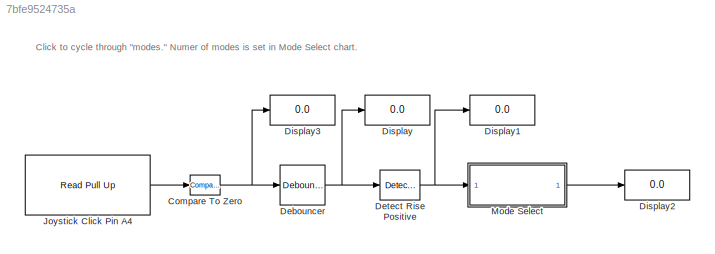
MODEL slx_7bfe9524735a
KIND model
CONFIG AbsTol = auto
CONFIG EnableMultiTasking = off
CONFIG FixedStep = .01
CONFIG MaxStep = auto
CONFIG MinStep = auto
CONFIG RelTol = 1e-3
CONFIG SampleTimeConstraint = Unconstrained
CONFIG Solver = FixedStepDiscrete
CONFIG SolverName = FixedStepDiscrete
CONFIG StartTime = 0.0
CONFIG StopTime = inf
BLOCK [Reference] Compare To Zero  REF=simulink/Logic and Bit
Operations/Compare
To Zero
  Ports = [1, 1]
  SourceBlock = simulink/Logic and Bit\nOperations/Compare\nTo Zero
  SourceProductBaseCode = SL
  SourceProductName = Simulink
  SourceType = Compare To Zero
BLOCK [Reference] Debouncer  REF=CustomLibrary/Debouncer
  Ports = [1, 1]
  SourceBlock = CustomLibrary/Debouncer
  SourceProductName = Custom Blocks
  SourceType = SubSystem
BLOCK [Reference] Detect Rise Positive  REF=simulink/Logic and Bit
Operations/Detect Rise
Positive
  Ports = [1, 1]
  SourceBlock = simulink/Logic and Bit\nOperations/Detect Rise\nPositive
  SourceProductBaseCode = SL
  SourceProductName = Simulink
  SourceType = Detect Rise Positive
BLOCK [Display] Display
  Decimation = 1
  Ports = [1]
BLOCK [Display] Display1
  Decimation = 1
  Ports = [1]
BLOCK [Display] Display2
  Decimation = 1
  Ports = [1]
BLOCK [Display] Display3
  Decimation = 1
  Ports = [1]
BLOCK [Reference] Joystick Click Pin A4  REF=CustomLibrary/Read Pull Up
  Ports = [0, 1]
  SourceBlock = CustomLibrary/Read Pull Up
  SourceProductName = Custom Blocks
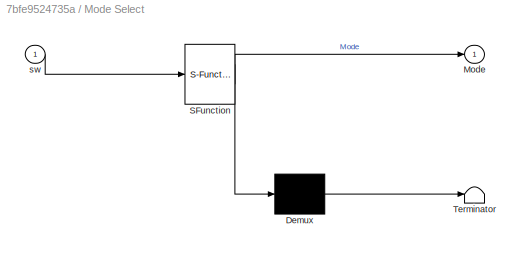
BLOCK [SubSystem] Mode Select
  ErrorFcn = Stateflow.Translate.translate
  PermitHierarchicalResolution = ExplicitOnly
  Ports = [1, 1]
  RequestExecContextInheritance = off
  SFBlockType = Chart
  TreatAsAtomicUnit = on
BLOCK [Demux] Mode Select/ Demux 
  Outputs = 1
  Ports = [1, 1]
BLOCK [S-Function] Mode Select/ SFunction 
  EnableBusSupport = on
  FunctionName = sf_sfun
  PortCounts = [1 2]
  Ports = [1, 2]
  SFcnIsStateOwnerBlock = off
  SFunctionDeploymentMode = off
  Tag = Stateflow S-Function ModeSelectWithDebounce 3
BLOCK [Terminator] Mode Select/ Terminator 
BLOCK [Outport] Mode Select/Mode
  IconDisplay = Port number
BLOCK [Inport] Mode Select/sw
  IconDisplay = Port number
ANNOTATION (root): Click to cycle through "modes." Numer of modes is set in Mode Select chart.
NET Compare To Zero:1 -> Debouncer:1, Display3:1
NET Debouncer:1 -> Detect Rise Positive:1, Display:1
NET Detect Rise Positive:1 -> Display1:1, Mode Select:1
LINE Joystick Click Pin A4:1 -> Compare To Zero:1
LINE Mode Select:1 -> Display2:1
note: NET lines group one-source signal fan-out (src -> all destinations, sorted); 1:1 wires keep LINE
CHART Mode Select states=2 transitions=4
  STATE_LABEL 'Off\nen:\nMode = 0;'
  STATE_LABEL 'Next_Mode\nen:\nMode = Mode + 1;'
